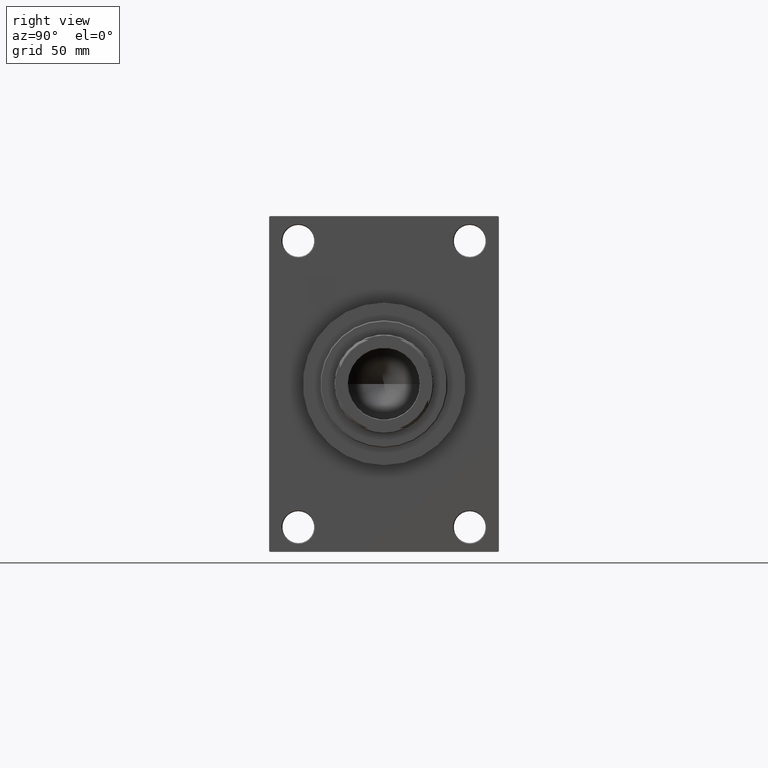
[diagram: clean part render]
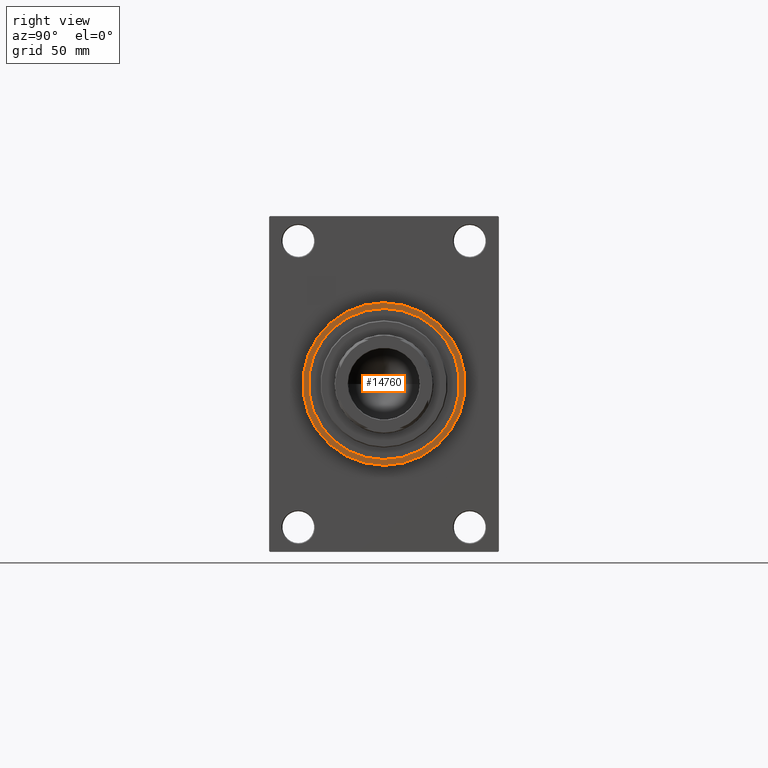
[diagram: same view with one face highlighted and labeled with its STEP entity id]
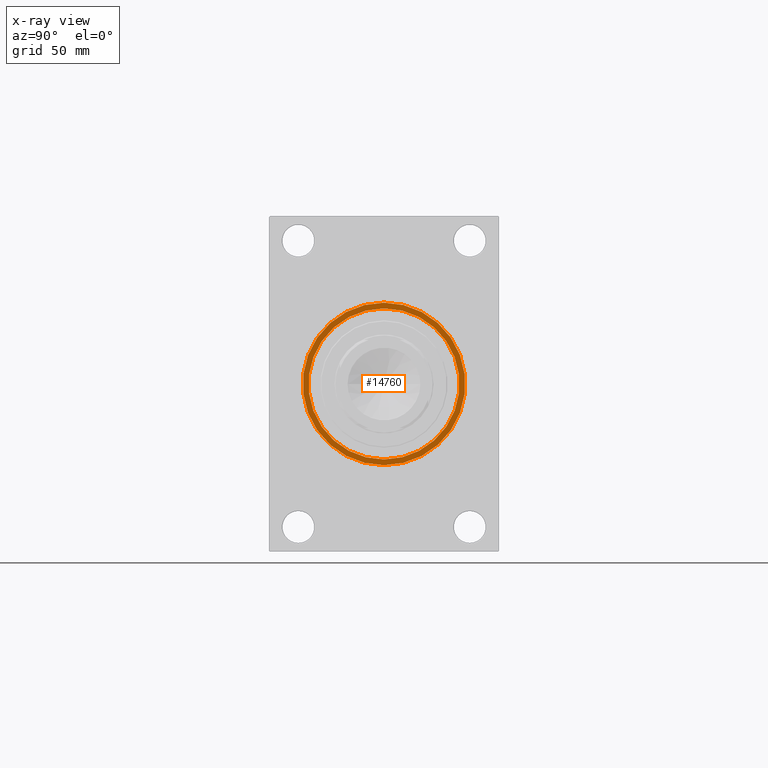
[diagram: x-ray of the same camera — body ghosted, the highlighted face saturated]
A machine part, right view. The second image highlights one B-rep face of the part: STEP entity #14760.
The next image is the same camera in x-ray: the body ghosted, the highlighted face saturated — about 0% of this face is hidden behind the body in this view.
In plain terms, the highlighted planar face has unit normal (1, 0, 0).
Its self-contained STEP definition (entity closure, byte-faithful):
#367 = CIRCLE ( 'NONE', #43554, 46.00000000000000000 ) ;
#753 = CARTESIAN_POINT ( 'NONE',  ( 289.0000000000000000, 0.000000000000000000, -42.75000000000000000 ) ) ;
#814 = CARTESIAN_POINT ( 'NONE',  ( 289.0000000000000000, 0.000000000000000000, 0.000000000000000000 ) ) ;
#1151 = ORIENTED_EDGE ( 'NONE', *, *, #24869, .F. ) ;
#1712 = CARTESIAN_POINT ( 'NONE',  ( 289.0000000000000000, 0.000000000000000000, 46.00000000000000000 ) ) ;
#3034 = CARTESIAN_POINT ( 'NONE',  ( 289.0000000000000000, 0.000000000000000000, 0.000000000000000000 ) ) ;
#4130 = FACE_BOUND ( 'NONE', #15640, .T. ) ;
#10492 = CIRCLE ( 'NONE', #25893, 42.75000000000000000 ) ;
#11318 = CIRCLE ( 'NONE', #38328, 46.00000000000000000 ) ;
#11355 = FACE_OUTER_BOUND ( 'NONE', #16798, .T. ) ;
#11583 = ORIENTED_EDGE ( 'NONE', *, *, #34257, .F. ) ;
#11885 = DIRECTION ( 'NONE',  ( 0.000000000000000000, 0.000000000000000000, -1.000000000000000000 ) ) ;
#13339 = CIRCLE ( 'NONE', #25696, 42.75000000000000000 ) ;
#14760 = ADVANCED_FACE ( 'NONE', ( #4130, #11355 ), #36731, .T. ) ;
#15519 = DIRECTION ( 'NONE',  ( 0.000000000000000000, 0.000000000000000000, -1.000000000000000000 ) ) ;
#15640 = EDGE_LOOP ( 'NONE', ( #11583, #1151 ) ) ;
#16179 = AXIS2_PLACEMENT_3D ( 'NONE', #29468, #26087, #40595 ) ;
#16798 = EDGE_LOOP ( 'NONE', ( #26926, #39043 ) ) ;
#17729 = DIRECTION ( 'NONE',  ( 1.000000000000000000, 0.000000000000000000, 0.000000000000000000 ) ) ;
#20894 = DIRECTION ( 'NONE',  ( 1.000000000000000000, 0.000000000000000000, 0.000000000000000000 ) ) ;
#22316 = DIRECTION ( 'NONE',  ( 0.000000000000000000, 0.000000000000000000, -1.000000000000000000 ) ) ;
#23683 = VERTEX_POINT ( 'NONE', #28175 ) ;
#24869 = EDGE_CURVE ( 'NONE', #23683, #35368, #13339, .T. ) ;
#25028 = CARTESIAN_POINT ( 'NONE',  ( 289.0000000000000000, 5.633375276077824704E-15, -46.00000000000000000 ) ) ;
#25696 = AXIS2_PLACEMENT_3D ( 'NONE', #3034, #17729, #22316 ) ;
#25893 = AXIS2_PLACEMENT_3D ( 'NONE', #29762, #40888, #11885 ) ;
#26087 = DIRECTION ( 'NONE',  ( 1.000000000000000000, 0.000000000000000000, 0.000000000000000000 ) ) ;
#26926 = ORIENTED_EDGE ( 'NONE', *, *, #37150, .T. ) ;
#28175 = CARTESIAN_POINT ( 'NONE',  ( 289.0000000000000000, 5.235365066354935472E-15, 42.75000000000000000 ) ) ;
#29468 = CARTESIAN_POINT ( 'NONE',  ( 289.0000000000000000, 0.000000000000000000, 0.000000000000000000 ) ) ;
#29762 = CARTESIAN_POINT ( 'NONE',  ( 289.0000000000000000, 0.000000000000000000, 0.000000000000000000 ) ) ;
#31850 = EDGE_CURVE ( 'NONE', #41936, #43333, #367, .T. ) ;
#34257 = EDGE_CURVE ( 'NONE', #35368, #23683, #10492, .T. ) ;
#35169 = DIRECTION ( 'NONE',  ( 0.000000000000000000, 0.000000000000000000, -1.000000000000000000 ) ) ;
#35368 = VERTEX_POINT ( 'NONE', #753 ) ;
#36731 = PLANE ( 'NONE',  #16179 ) ;
#37150 = EDGE_CURVE ( 'NONE', #43333, #41936, #11318, .T. ) ;
#38328 = AXIS2_PLACEMENT_3D ( 'NONE', #39752, #20894, #35169 ) ;
#39043 = ORIENTED_EDGE ( 'NONE', *, *, #31850, .T. ) ;
#39752 = CARTESIAN_POINT ( 'NONE',  ( 289.0000000000000000, 0.000000000000000000, 0.000000000000000000 ) ) ;
#40595 = DIRECTION ( 'NONE',  ( 0.000000000000000000, 0.000000000000000000, -1.000000000000000000 ) ) ;
#40888 = DIRECTION ( 'NONE',  ( 1.000000000000000000, 0.000000000000000000, 0.000000000000000000 ) ) ;
#41377 = DIRECTION ( 'NONE',  ( 1.000000000000000000, 0.000000000000000000, 0.000000000000000000 ) ) ;
#41936 = VERTEX_POINT ( 'NONE', #25028 ) ;
#43333 = VERTEX_POINT ( 'NONE', #1712 ) ;
#43554 = AXIS2_PLACEMENT_3D ( 'NONE', #814, #41377, #15519 ) ;